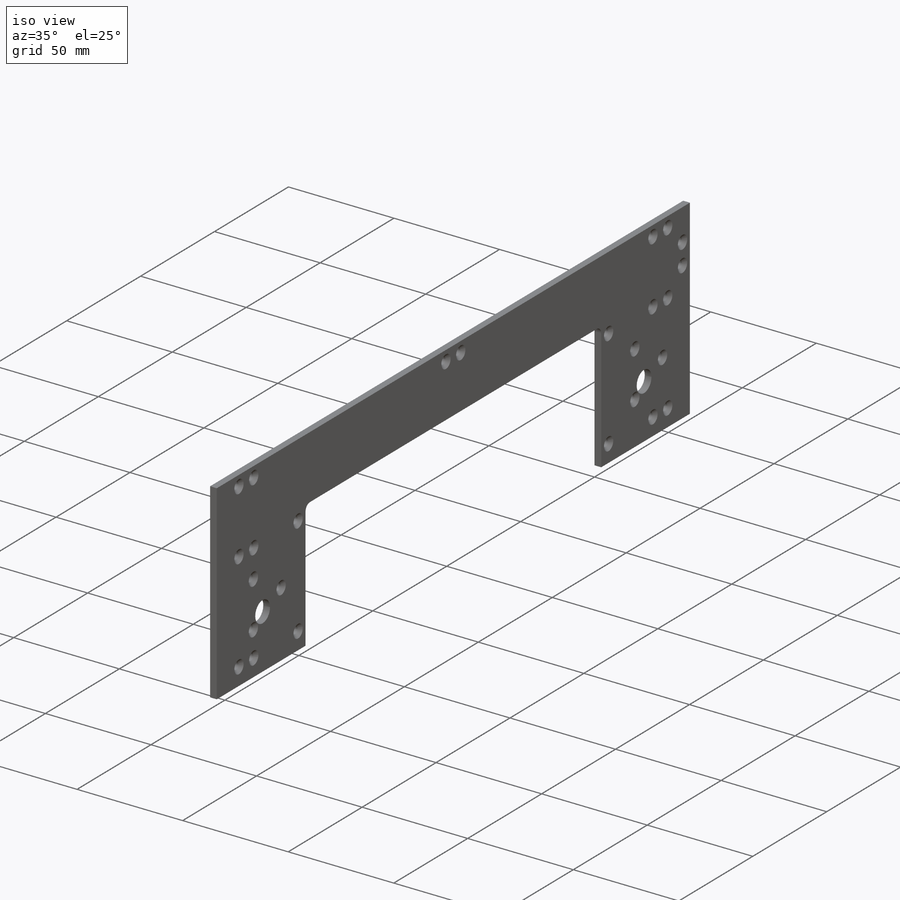
[diagram: iso view]
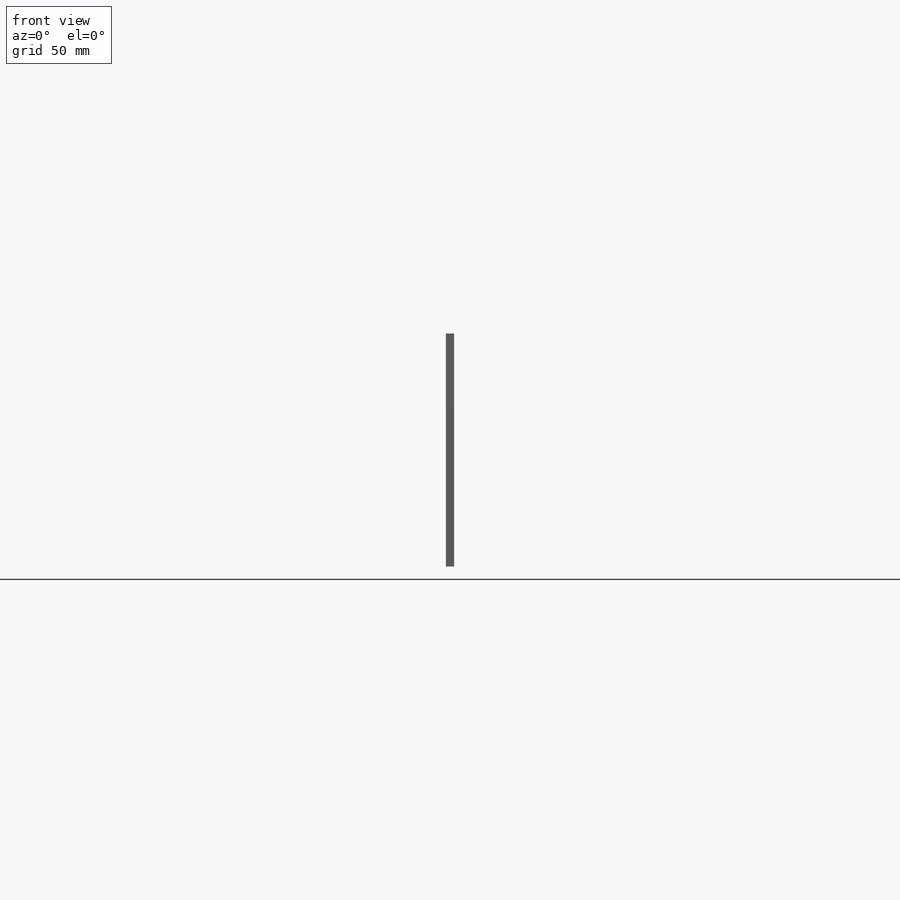
[diagram: front view]
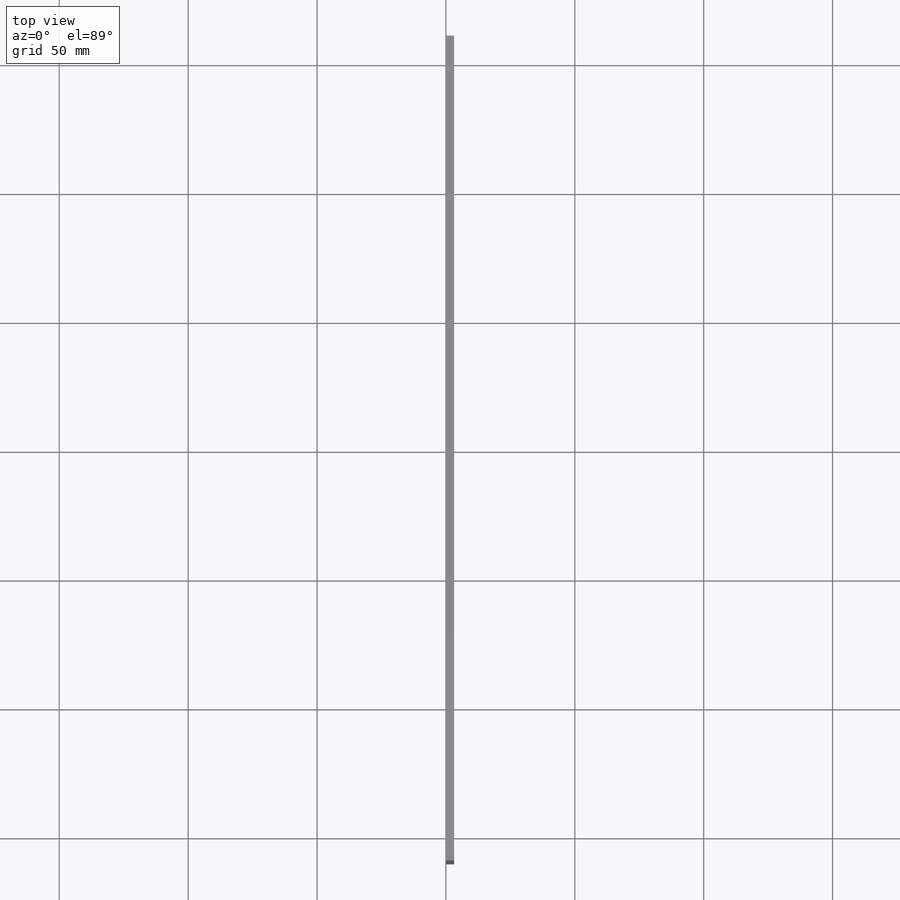
[diagram: top view]
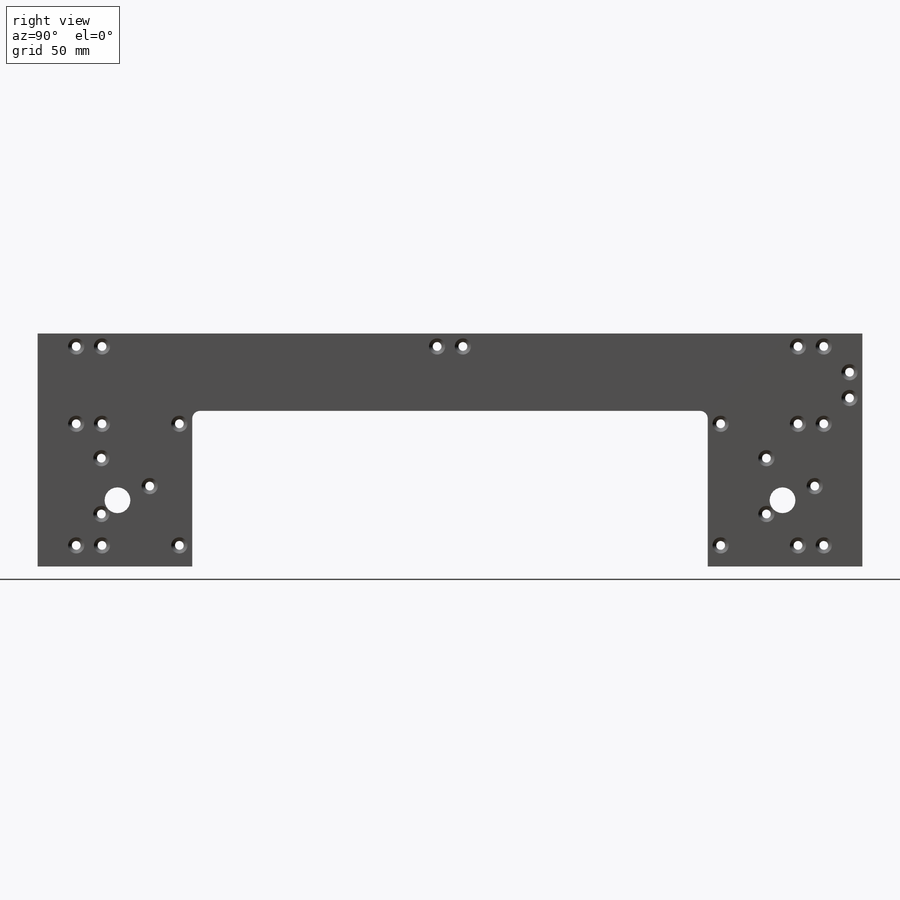
[diagram: right view]
SOLIDWORKS PART (.sldprt)
format: sldprt  version: not decoded by parser v0  size: 378,368 bytes
history: native  units: mm
features: sketch x8, hole x3, material x1, extrude x1, mirror x1, cut_extrude x1, pattern_linear x1 (+11 scaffold rows collapsed)
feature tree (27):
  scaffold x11  (default folders/planes/origin — collapsed)
  material  "Garolite (G-10/FR4)"
  sketch  "Sketch1"  dims[c1.D1=300.0mm c1.D2=110.0mm c1.D3=13.0mm c1.D4=13.0mm c1.D5=90.0mm c2.D1=320.0mm c2.D2=44.0mm c2.D3=3.175mm c2.D4=44.0mm c2.D5=3.175mm c2.D6=10.0mm c2.D7=~20.252474mm c3.D2=30.0mm]
  extrude  "Boss-Extrude1"  Depth=3.175mm
  hole  "CSK for M3 Flat Head Machine Screw1"  Diameter=3.4mm Depth=3.175mm
  sketch  "Sketch3"  dims[c1.D11=25.0mm c1.D1=8.175mm c1.D2=15.0mm c1.D3=10.0mm c1.D4=30.0mm c1.D5=15.0mm c1.D6=10.0mm c1.D7=30.0mm c1.D8=55.35mm c1.D9=30.175mm c1.D10=~37.08232mm c2.D10=90.0deg c3.D10=30.0mm c3.D12=12.5mm c4.D12=120.0deg c4.D13=~11.43809mm c5.D13=120.0deg c5.D5=30.0mm c5.D6=10.0mm c5.D7=~11.351223mm c6.D7=~2.587613deg c7.D7=10.0mm c7.D14=10.0mm c7.D6=140.0mm]
  sketch  "Sketch2"  dims[hole-wizard template sketch: 59 standard entries collapsed; hole parameters above]
  mirror  "Mirror1"
  sketch  "Sketch4"  dims[D3=3.0mm D4=10.0mm D11=3.0mm D1=60.0mm D2=60.35mm D5=31.0mm D6=25.675mm D7=31.0mm D8=20.0mm D9=4.0mm D10=10.0mm]
  cut_extrude  "Cut-Extrude1"  [1 undecoded]
  hole  "CSK for M3 Flat Head Machine Screw2"  Diameter=3.4mm Depth=3.175mm
  sketch  "Sketch6"  dims[c1.D1=10.0mm c1.D2=5.0mm c1.D3=15.0mm c2.D2=5.0mm]
  sketch  "Sketch5"  dims[hole-wizard template sketch: 59 standard entries collapsed; hole parameters above]
  hole  "CSK for M3 Flat Head Machine Screw3"  Diameter=3.4mm Depth=3.175mm
  sketch  "Sketch8"  dims[c1.D1=25.0mm c1.D2=12.5mm c2.D2=120.0deg c2.D3=12.5mm c3.D3=120.0deg c3.D4=31.175mm]
  sketch  "Sketch7"  dims[hole-wizard template sketch: 59 standard entries collapsed; hole parameters above]
  pattern_linear  "LPattern1"  Count1=2 Count2=1 Spacing1=258mm Spacing2=10mm
decode coverage: 13 of 15 modeling features carry decoded parameters
note: ~ marks probable driven/reference dimensions
note: 1 parameter value undecoded
note: suppression state not decoded; provenance and decode notes live in map.json
